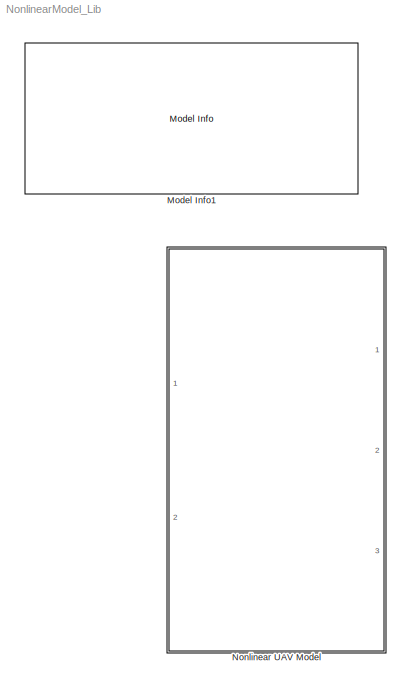
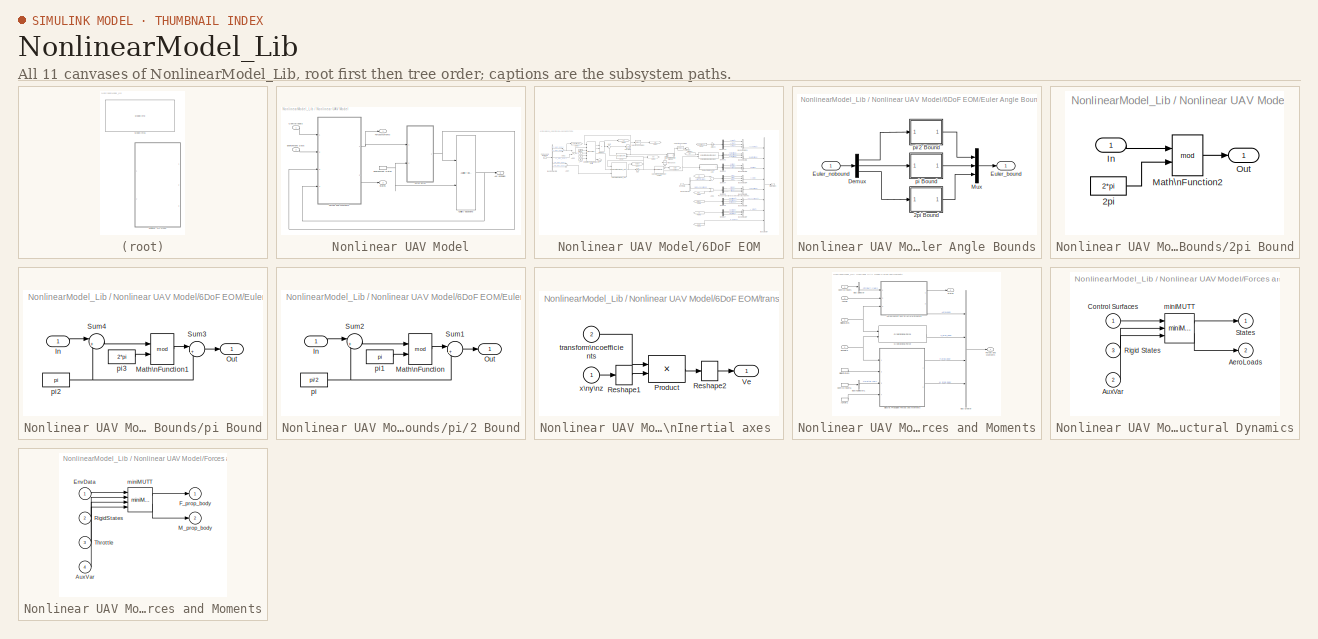
[diagram: thumbnail index - all 11 canvases of the model, root first then tree order]
MODEL NonlinearModel_Lib
KIND library
BLOCK [Reference] Model Info1  REF=simulink/Model-Wide\nUtilities/Model Info
  BlockCM = None
  DisplayStringWithTags = MODEL INFORMATION\nUAV Nonlinear Model Library\n\nUniversity of Minnesota\nAerospace Engineering and Mechanics\nCopyright 2011 Regents of the University of Minnesota. All rights reserved.\n\n== SVN Info ==\nLast modified by %<LastModifiedBy> on %<LastModificationDate>
  Frame = on
  HorizontalTextAlignment = Left
  InitialBlockCM = None
  LeftAlignmentValue = 0.02
  MaskDisplayString = MODEL INFORMATION\\nUAV Nonlinear Model Library\\n\\nUniversity of Minnesota\\nAerospace Engineering and Mechanics\\nCopyright 2011 Regents of the University of Minnesota. All rights reserved.\\n\\n== SVN Info ==\\nLast modified by brtaylor on 20-May-2014 11:43:06
  Ports = []
  SID = 2165
  SourceBlock = simulink/Model-Wide\nUtilities/Model Info
  SourceBlockDiagram = NonlinearModel_Lib
  SourceType = CMBlock
  TagMaxNumber = 20
BLOCK [SubSystem] Nonlinear UAV Model
  FunctionWithSeparateData = off
  MaskHideContents = off
  MinAlgLoopOccurrences = off
  Opaque = off
  Ports = [2, 3]
  PropExecContextOutsideSubsystem = off
  RTWSystemCode = Auto
  RequestExecContextInheritance = off
  SID = 1513
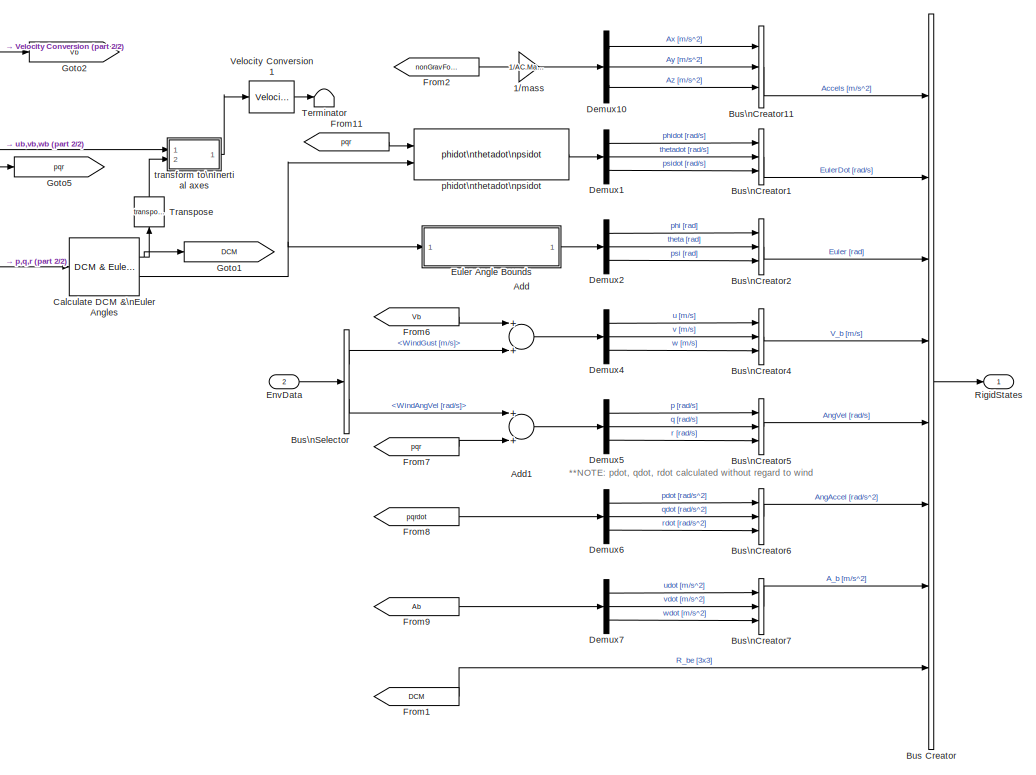
[diagram: Nonlinear UAV Model/6DoF EOM - part 1/2, right side, full height]
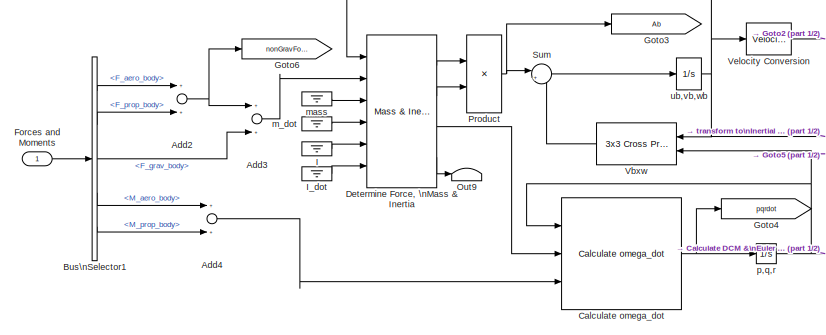
[diagram: Nonlinear UAV Model/6DoF EOM - part 2/2, top left region]
BLOCK [SubSystem] Nonlinear UAV Model/6DoF EOM
  FunctionWithSeparateData = off
  MaskHideContents = off
  MinAlgLoopOccurrences = off
  Opaque = off
  Ports = [2, 1]
  PropExecContextOutsideSubsystem = off
  RTWSystemCode = Auto
  RequestExecContextInheritance = off
  SID = 2142
BLOCK [Gain] Nonlinear UAV Model/6DoF EOM/1//mass
  Gain = 1/AC.Mass
  OutDataTypeStr = Inherit: Inherit via internal rule
  ParamDataTypeStr = Inherit: Inherit via internal rule
  SID = 2142:2277
  SaturateOnIntegerOverflow = off
BLOCK [Sum] Nonlinear UAV Model/6DoF EOM/Add
  InputSameDT = off
  OutDataTypeStr = Inherit: Inherit via internal rule
  Ports = [2, 1]
  SID = 2142:2253
  SaturateOnIntegerOverflow = off
BLOCK [Sum] Nonlinear UAV Model/6DoF EOM/Add1
  InputSameDT = off
  OutDataTypeStr = Inherit: Inherit via internal rule
  Ports = [2, 1]
  SID = 2142:2256
  SaturateOnIntegerOverflow = off
BLOCK [Sum] Nonlinear UAV Model/6DoF EOM/Add2
  InputSameDT = off
  OutDataTypeStr = Inherit: Inherit via internal rule
  Ports = [2, 1]
  SID = 2142:2405
  SaturateOnIntegerOverflow = off
BLOCK [Sum] Nonlinear UAV Model/6DoF EOM/Add3
  InputSameDT = off
  OutDataTypeStr = Inherit: Inherit via internal rule
  Ports = [2, 1]
  SID = 2142:2406
  SaturateOnIntegerOverflow = off
BLOCK [Sum] Nonlinear UAV Model/6DoF EOM/Add4
  InputSameDT = off
  OutDataTypeStr = Inherit: Inherit via internal rule
  Ports = [2, 1]
  SID = 2142:2408
  SaturateOnIntegerOverflow = off
BLOCK [BusCreator] Nonlinear UAV Model/6DoF EOM/Bus Creator
  DisplayOption = bar
  Inputs = 8
  Ports = [8, 1]
  SID = 2142:2242
BLOCK [BusCreator] Nonlinear UAV Model/6DoF EOM/Bus\nCreator1
  DisplayOption = bar
  Inputs = 3
  Ports = [3, 1]
  SID = 2142:2271
BLOCK [BusCreator] Nonlinear UAV Model/6DoF EOM/Bus\nCreator11
  DisplayOption = bar
  Inputs = 3
  Ports = [3, 1]
  SID = 2142:2278
BLOCK [BusCreator] Nonlinear UAV Model/6DoF EOM/Bus\nCreator2
  DisplayOption = bar
  Inputs = 3
  Ports = [3, 1]
  SID = 2142:2275
BLOCK [BusCreator] Nonlinear UAV Model/6DoF EOM/Bus\nCreator4
  DisplayOption = bar
  Inputs = 3
  Ports = [3, 1]
  SID = 2142:2254
BLOCK [BusCreator] Nonlinear UAV Model/6DoF EOM/Bus\nCreator5
  DisplayOption = bar
  Inputs = 3
  Ports = [3, 1]
  SID = 2142:2258
BLOCK [BusCreator] Nonlinear UAV Model/6DoF EOM/Bus\nCreator6
  DisplayOption = bar
  Inputs = 3
  Ports = [3, 1]
  SID = 2142:2260
BLOCK [BusCreator] Nonlinear UAV Model/6DoF EOM/Bus\nCreator7
  DisplayOption = bar
  Inputs = 3
  Ports = [3, 1]
  SID = 2142:2263
BLOCK [BusSelector] Nonlinear UAV Model/6DoF EOM/Bus\nSelector
  OutputSignals = WindGust [m/s],WindAngVel [rad/s]
  Ports = [1, 2]
  SID = 2142:2251
BLOCK [BusSelector] Nonlinear UAV Model/6DoF EOM/Bus\nSelector1
  OutputSignals = AeroLoads.F_aero_body,F_prop_body,F_grav_body,AeroLoads.M_aero_body,M_prop_body
  Ports = [1, 5]
  SID = 2142:2404
BLOCK [Reference] Nonlinear UAV Model/6DoF EOM/Calculate DCM &\nEuler Angles  REF=aerolib6dofsys/DCM & Euler Angles (Euler)
  FunctionWithSeparateData = off
  GeneratePreprocessorConditionals = off
  Ports = [1, 2]
  SID = 2142:2142
  ShowPortLabels = FromPortIcon
  SourceBlock = aerolib6dofsys/DCM & Euler Angles (Euler)
  SourceType = DCM & Euler Angles (Euler)
  SystemSampleTime = -1
BLOCK [Reference] Nonlinear UAV Model/6DoF EOM/Calculate omega_dot  REF=aerolib6dofsys/Calculate omega_dot
  Ports = [3, 1]
  SID = 2142:2143
  SourceBlock = aerolib6dofsys/Calculate omega_dot
  SourceType = SubSystem
BLOCK [Demux] Nonlinear UAV Model/6DoF EOM/Demux1
  DisplayOption = bar
  Outputs = 3
  Ports = [1, 3]
  SID = 2142:2272
BLOCK [Demux] Nonlinear UAV Model/6DoF EOM/Demux10
  DisplayOption = bar
  Outputs = 3
  Ports = [1, 3]
  SID = 2142:2279
BLOCK [Demux] Nonlinear UAV Model/6DoF EOM/Demux2
  DisplayOption = bar
  Outputs = 3
  Ports = [1, 3]
  SID = 2142:2276
BLOCK [Demux] Nonlinear UAV Model/6DoF EOM/Demux4
  DisplayOption = bar
  Outputs = 3
  Ports = [1, 3]
  SID = 2142:2255
BLOCK [Demux] Nonlinear UAV Model/6DoF EOM/Demux5
  DisplayOption = bar
  Outputs = 3
  Ports = [1, 3]
  SID = 2142:2259
BLOCK [Demux] Nonlinear UAV Model/6DoF EOM/Demux6
  DisplayOption = bar
  Outputs = 3
  Ports = [1, 3]
  SID = 2142:2261
BLOCK [Demux] Nonlinear UAV Model/6DoF EOM/Demux7
  DisplayOption = bar
  Outputs = 3
  Ports = [1, 3]
  SID = 2142:2264
BLOCK [Reference] Nonlinear UAV Model/6DoF EOM/Determine Force, \nMass & Inertia  REF=aerolib6dofsys/Mass & Inertia (fixed)
  FunctionWithSeparateData = off
  GeneratePreprocessorConditionals = off
  Ports = [6, 4]
  SID = 2142:2144
  ShowPortLabels = FromPortIcon
  SourceBlock = aerolib6dofsys/Mass & Inertia (fixed)
  SourceType = Mass & Inertia (fixed)
  SystemSampleTime = -1
BLOCK [Inport] Nonlinear UAV Model/6DoF EOM/EnvData
  IconDisplay = Port number
  Port = 2
  SID = 2142:2250
BLOCK [SubSystem] Nonlinear UAV Model/6DoF EOM/Euler Angle Bounds
  FunctionWithSeparateData = off
  MaskHideContents = off
  MinAlgLoopOccurrences = off
  Opaque = off
  Ports = [1, 1]
  PropExecContextOutsideSubsystem = off
  RTWSystemCode = Auto
  RequestExecContextInheritance = off
  SID = 2142:2350
BLOCK [SubSystem] Nonlinear UAV Model/6DoF EOM/Euler Angle Bounds/2pi Bound
  FunctionWithSeparateData = off
  MaskHideContents = off
  MinAlgLoopOccurrences = off
  Opaque = off
  Ports = [1, 1]
  PropExecContextOutsideSubsystem = off
  RTWSystemCode = Auto
  RequestExecContextInheritance = off
  SID = 2142:2392
BLOCK [Constant] Nonlinear UAV Model/6DoF EOM/Euler Angle Bounds/2pi Bound/2pi
  SID = 2142:2401
  Value = 2*pi
BLOCK [Inport] Nonlinear UAV Model/6DoF EOM/Euler Angle Bounds/2pi Bound/In
  IconDisplay = Port number
  SID = 2142:2400
BLOCK [Math] Nonlinear UAV Model/6DoF EOM/Euler Angle Bounds/2pi Bound/Math\nFunction2
  Operator = mod
  Ports = [2, 1]
  SID = 2142:2402
BLOCK [Outport] Nonlinear UAV Model/6DoF EOM/Euler Angle Bounds/2pi Bound/Out
  IconDisplay = Port number
  SID = 2142:2403
BLOCK [Demux] Nonlinear UAV Model/6DoF EOM/Euler Angle Bounds/Demux
  DisplayOption = bar
  Outputs = 3
  Ports = [1, 3]
  SID = 2142:2355
BLOCK [Outport] Nonlinear UAV Model/6DoF EOM/Euler Angle Bounds/Euler_bound
  IconDisplay = Port number
  SID = 2142:2359
BLOCK [Inport] Nonlinear UAV Model/6DoF EOM/Euler Angle Bounds/Euler_nobound
  IconDisplay = Port number
  SID = 2142:2353
BLOCK [Mux] Nonlinear UAV Model/6DoF EOM/Euler Angle Bounds/Mux
  DisplayOption = bar
  Inputs = 3
  Ports = [3, 1]
  SID = 2142:2356
BLOCK [SubSystem] Nonlinear UAV Model/6DoF EOM/Euler Angle Bounds/pi Bound
  FunctionWithSeparateData = off
  MaskHideContents = off
  MinAlgLoopOccurrences = off
  Opaque = off
  Ports = [1, 1]
  PropExecContextOutsideSubsystem = off
  RTWSystemCode = Auto
  RequestExecContextInheritance = off
  SID = 2142:2377
BLOCK [Inport] Nonlinear UAV Model/6DoF EOM/Euler Angle Bounds/pi Bound/In
  IconDisplay = Port number
  SID = 2142:2385
BLOCK [Math] Nonlinear UAV Model/6DoF EOM/Euler Angle Bounds/pi Bound/Math\nFunction1
  Operator = mod
  Ports = [2, 1]
  SID = 2142:2386
BLOCK [Outport] Nonlinear UAV Model/6DoF EOM/Euler Angle Bounds/pi Bound/Out
  IconDisplay = Port number
  SID = 2142:2391
BLOCK [Sum] Nonlinear UAV Model/6DoF EOM/Euler Angle Bounds/pi Bound/Sum3
  IconShape = round
  Inputs = |+-
  Ports = [2, 1]
  SID = 2142:2387
BLOCK [Sum] Nonlinear UAV Model/6DoF EOM/Euler Angle Bounds/pi Bound/Sum4
  IconShape = round
  Inputs = |++
  Ports = [2, 1]
  SID = 2142:2388
BLOCK [Constant] Nonlinear UAV Model/6DoF EOM/Euler Angle Bounds/pi Bound/pi2
  SID = 2142:2389
  Value = pi
BLOCK [Constant] Nonlinear UAV Model/6DoF EOM/Euler Angle Bounds/pi Bound/pi3
  SID = 2142:2390
  Value = 2*pi
BLOCK [SubSystem] Nonlinear UAV Model/6DoF EOM/Euler Angle Bounds/pi//2 Bound
  FunctionWithSeparateData = off
  MaskHideContents = off
  MinAlgLoopOccurrences = off
  Opaque = off
  Ports = [1, 1]
  PropExecContextOutsideSubsystem = off
  RTWSystemCode = Auto
  RequestExecContextInheritance = off
  SID = 2142:2363
BLOCK [Inport] Nonlinear UAV Model/6DoF EOM/Euler Angle Bounds/pi//2 Bound/In
  IconDisplay = Port number
  SID = 2142:2366
BLOCK [Math] Nonlinear UAV Model/6DoF EOM/Euler Angle Bounds/pi//2 Bound/Math\nFunction
  Operator = mod
  Ports = [2, 1]
  SID = 2142:2367
BLOCK [Outport] Nonlinear UAV Model/6DoF EOM/Euler Angle Bounds/pi//2 Bound/Out
  IconDisplay = Port number
  SID = 2142:2372
BLOCK [Sum] Nonlinear UAV Model/6DoF EOM/Euler Angle Bounds/pi//2 Bound/Sum1
  IconShape = round
  Inputs = |+-
  Ports = [2, 1]
  SID = 2142:2368
BLOCK [Sum] Nonlinear UAV Model/6DoF EOM/Euler Angle Bounds/pi//2 Bound/Sum2
  IconShape = round
  Inputs = |++
  Ports = [2, 1]
  SID = 2142:2369
BLOCK [Constant] Nonlinear UAV Model/6DoF EOM/Euler Angle Bounds/pi//2 Bound/pi
  SID = 2142:2370
  Value = pi/2
BLOCK [Constant] Nonlinear UAV Model/6DoF EOM/Euler Angle Bounds/pi//2 Bound/pi1
  SID = 2142:2371
  Value = pi
BLOCK [Inport] Nonlinear UAV Model/6DoF EOM/Forces and Moments
  IconDisplay = Port number
  SID = 2142:2140
BLOCK [From] Nonlinear UAV Model/6DoF EOM/From1
  GotoTag = DCM
  SID = 2142:2281
BLOCK [From] Nonlinear UAV Model/6DoF EOM/From11
  GotoTag = pqr
  SID = 2142:2273
BLOCK [From] Nonlinear UAV Model/6DoF EOM/From2
  GotoTag = nonGravForces
  SID = 2142:2409
BLOCK [From] Nonlinear UAV Model/6DoF EOM/From6
  GotoTag = Vb
  SID = 2142:2252
BLOCK [From] Nonlinear UAV Model/6DoF EOM/From7
  GotoTag = pqr
  SID = 2142:2257
BLOCK [From] Nonlinear UAV Model/6DoF EOM/From8
  GotoTag = pqrdot
  SID = 2142:2262
BLOCK [From] Nonlinear UAV Model/6DoF EOM/From9
  GotoTag = Ab
  SID = 2142:2265
BLOCK [Goto] Nonlinear UAV Model/6DoF EOM/Goto1
  GotoTag = DCM
  SID = 2142:2237
BLOCK [Goto] Nonlinear UAV Model/6DoF EOM/Goto2
  GotoTag = Vb
  SID = 2142:2238
BLOCK [Goto] Nonlinear UAV Model/6DoF EOM/Goto3
  GotoTag = Ab
  SID = 2142:2239
BLOCK [Goto] Nonlinear UAV Model/6DoF EOM/Goto4
  GotoTag = pqrdot
  SID = 2142:2240
BLOCK [Goto] Nonlinear UAV Model/6DoF EOM/Goto5
  GotoTag = pqr
  SID = 2142:2241
BLOCK [Goto] Nonlinear UAV Model/6DoF EOM/Goto6
  GotoTag = nonGravForces
  SID = 2142:2407
BLOCK [Ground] Nonlinear UAV Model/6DoF EOM/I
  SID = 2142:2145
BLOCK [Ground] Nonlinear UAV Model/6DoF EOM/I_dot
  SID = 2142:2146
BLOCK [Terminator] Nonlinear UAV Model/6DoF EOM/Out9
  SID = 2142:2147
BLOCK [Product] Nonlinear UAV Model/6DoF EOM/Product
  InputSameDT = off
  Inputs = */
  Ports = [2, 1]
  RndMeth = Floor
  SID = 2142:2148
BLOCK [Outport] Nonlinear UAV Model/6DoF EOM/RigidStates
  IconDisplay = Port number
  SID = 2142:2166
BLOCK [Sum] Nonlinear UAV Model/6DoF EOM/Sum
  IconShape = round
  InputSameDT = off
  Inputs = |++
  OutDataTypeStr = Inherit: Inherit via internal rule
  Ports = [2, 1]
  SID = 2142:2149
BLOCK [Terminator] Nonlinear UAV Model/6DoF EOM/Terminator
  SID = 2142:2150
BLOCK [Math] Nonlinear UAV Model/6DoF EOM/Transpose
  Operator = transpose
  Ports = [1, 1]
  SID = 2142:2151
BLOCK [Reference] Nonlinear UAV Model/6DoF EOM/Vbxw  REF=aerolibutil/3x3 Cross Product
  Ports = [2, 1]
  SID = 2142:2152
  SourceBlock = aerolibutil/3x3 Cross Product
  SourceType = CrossProduct
BLOCK [Reference] Nonlinear UAV Model/6DoF EOM/Velocity Conversion  REF=aerolibconvert2/Velocity Conversion
  IU = m/s
  OU = m/s
  Ports = [1, 1]
  SID = 2142:2153
  SourceBlock = aerolibconvert2/Velocity Conversion
  SourceType = Velocity Conversion
BLOCK [Reference] Nonlinear UAV Model/6DoF EOM/Velocity Conversion1  REF=aerolibconvert2/Velocity Conversion
  IU = m/s
  OU = m/s
  Ports = [1, 1]
  SID = 2142:2154
  SourceBlock = aerolibconvert2/Velocity Conversion
  SourceType = Velocity Conversion
BLOCK [Ground] Nonlinear UAV Model/6DoF EOM/m_dot
  SID = 2142:2155
BLOCK [Ground] Nonlinear UAV Model/6DoF EOM/mass
  SID = 2142:2156
BLOCK [Integrator] Nonlinear UAV Model/6DoF EOM/p,q,r 
  InitialCondition = pm_0
  Ports = [1, 1]
  SID = 2142:2157
BLOCK [Reference] Nonlinear UAV Model/6DoF EOM/phidot\nthetadot\npsidot  REF=aerolib6dofsys/DCM & Euler Angles (Euler)/phidot\nthetadot\npsidot
  Ports = [2, 1]
  SID = 2142:2274
  SourceBlock = aerolib6dofsys/DCM & Euler Angles (Euler)/phidot\nthetadot\npsidot
  SourceType = SubSystem
BLOCK [SubSystem] Nonlinear UAV Model/6DoF EOM/transform to\nInertial axes 
  FunctionWithSeparateData = off
  MaskHideContents = off
  MinAlgLoopOccurrences = off
  Opaque = off
  Ports = [2, 1]
  PropExecContextOutsideSubsystem = off
  RTWSystemCode = Auto
  RequestExecContextInheritance = off
  SID = 2142:2158
  ShowPortLabels = none
BLOCK [Product] Nonlinear UAV Model/6DoF EOM/transform to\nInertial axes /Product
  Multiplication = Matrix(*)
  Ports = [2, 1]
  RndMeth = Floor
  SID = 2142:2161
BLOCK [Reshape] Nonlinear UAV Model/6DoF EOM/transform to\nInertial axes /Reshape1
  OutputDimensionality = Column vector (2-D)
  Ports = [1, 1]
  SID = 2142:2162
BLOCK [Reshape] Nonlinear UAV Model/6DoF EOM/transform to\nInertial axes /Reshape2
  Ports = [1, 1]
  SID = 2142:2163
BLOCK [Outport] Nonlinear UAV Model/6DoF EOM/transform to\nInertial axes /Ve
  IconDisplay = Port number
  SID = 2142:2164
BLOCK [Inport] Nonlinear UAV Model/6DoF EOM/transform to\nInertial axes /transform\ncoefficients
  IconDisplay = Port number
  Port = 2
  SID = 2142:2160
BLOCK [Inport] Nonlinear UAV Model/6DoF EOM/transform to\nInertial axes /x\ny\nz
  IconDisplay = Port number
  SID = 2142:2159
BLOCK [Integrator] Nonlinear UAV Model/6DoF EOM/ub,vb,wb
  InitialCondition = convvel(Vm_0,'m/s','m/s')
  Ports = [1, 1]
  SID = 2142:2165
BLOCK [Outport] Nonlinear UAV Model/Aux Variables
  IconDisplay = Port number
  Port = 3
  SID = 2163
BLOCK [Reference] Nonlinear UAV Model/Auxiliary Equations  REF=AuxEq_Lib/Auxiliary Equations
  Ports = [2, 1]
  SID = 2143
  SourceBlock = AuxEq_Lib/Auxiliary Equations
  SourceType = SubSystem
BLOCK [Inport] Nonlinear UAV Model/Control Inputs
  IconDisplay = Port number
  SID = 2141
BLOCK [Inport] Nonlinear UAV Model/Environment Data
  IconDisplay = Port number
  Port = 2
  SID = 2167
BLOCK [InportShadow] Nonlinear UAV Model/Environment Data1
  IconDisplay = Port number
  LatchByDelayingOutsideSignal = off
  LatchInputForFeedbackSignals = off
  Port = 2
  SID = 2169
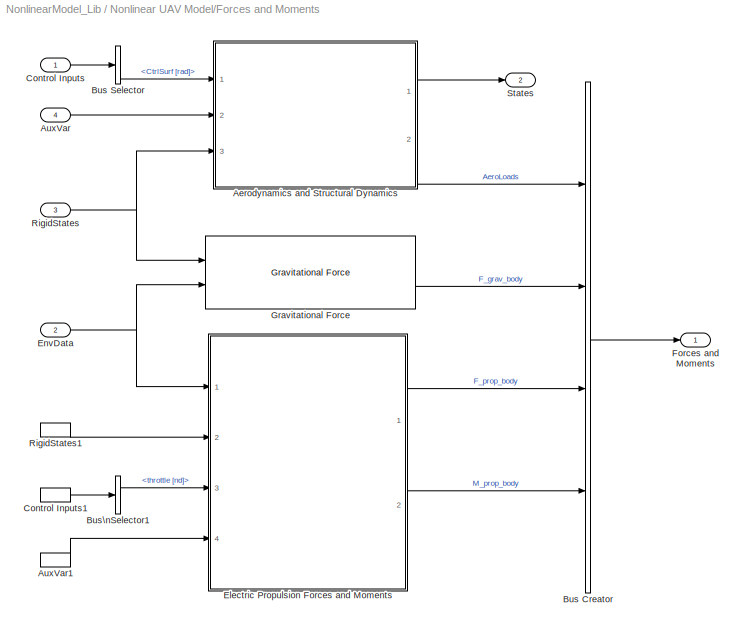
BLOCK [SubSystem] Nonlinear UAV Model/Forces and Moments
  FunctionWithSeparateData = off
  MaskHideContents = off
  MinAlgLoopOccurrences = off
  Opaque = off
  Ports = [4, 2]
  PropExecContextOutsideSubsystem = off
  RTWSystemCode = Auto
  RequestExecContextInheritance = off
  SID = 2145
BLOCK [SubSystem] Nonlinear UAV Model/Forces and Moments/Aerodynamics and Structural Dynamics
  AttributesFormatString = %<BlockChoice>
  BlockChoice = miniMUTT
  FunctionWithSeparateData = off
  MaskHideContents = off
  MemberBlocks = UltraStick,miniMUTT
  MinAlgLoopOccurrences = off
  Opaque = off
  Ports = [3, 2]
  PropExecContextOutsideSubsystem = off
  RTWSystemCode = Auto
  RequestExecContextInheritance = off
  SID = 2174
  TemplateBlock = Aero_Lib/Aerodynamics and Structural Dynamics
BLOCK [Outport] Nonlinear UAV Model/Forces and Moments/Aerodynamics and Structural Dynamics/AeroLoads
  IconDisplay = Port number
  Port = 2
  SID = 2174::1004
BLOCK [Inport] Nonlinear UAV Model/Forces and Moments/Aerodynamics and Structural Dynamics/AuxVar
  IconDisplay = Port number
  Port = 2
  SID = 2174::1001
BLOCK [Inport] Nonlinear UAV Model/Forces and Moments/Aerodynamics and Structural Dynamics/Control Surfaces
  IconDisplay = Port number
  SID = 2174::999
BLOCK [Inport] Nonlinear UAV Model/Forces and Moments/Aerodynamics and Structural Dynamics/Rigid States
  IconDisplay = Port number
  Port = 3
  SID = 2174::1000
BLOCK [Outport] Nonlinear UAV Model/Forces and Moments/Aerodynamics and Structural Dynamics/States
  IconDisplay = Port number
  SID = 2174::1003
BLOCK [Reference] Nonlinear UAV Model/Forces and Moments/Aerodynamics and Structural Dynamics/miniMUTT  REF=miniMUTT_Aero_Lib/miniMUTT
  Ports = [3, 2]
  SID = 2174::977
  SourceBlock = miniMUTT_Aero_Lib/miniMUTT
  SourceType = SubSystem
BLOCK [Inport] Nonlinear UAV Model/Forces and Moments/AuxVar
  IconDisplay = Port number
  Port = 4
  SID = 2170
BLOCK [InportShadow] Nonlinear UAV Model/Forces and Moments/AuxVar1
  IconDisplay = Port number
  LatchByDelayingOutsideSignal = off
  LatchInputForFeedbackSignals = off
  Port = 4
  SID = 2176
BLOCK [BusCreator] Nonlinear UAV Model/Forces and Moments/Bus Creator
  DisplayOption = bar
  Ports = [4, 1]
  SID = 2173
BLOCK [BusSelector] Nonlinear UAV Model/Forces and Moments/Bus Selector
  OutputSignals = CtrlSurf [rad]
  Ports = [1, 1]
  SID = 2175
BLOCK [BusSelector] Nonlinear UAV Model/Forces and Moments/Bus\nSelector1
  OutputSignals = throttle [nd]
  Ports = [1, 1]
  SID = 2151
BLOCK [Inport] Nonlinear UAV Model/Forces and Moments/Control Inputs
  IconDisplay = Port number
  SID = 2146
BLOCK [InportShadow] Nonlinear UAV Model/Forces and Moments/Control Inputs1
  IconDisplay = Port number
  LatchByDelayingOutsideSignal = off
  LatchInputForFeedbackSignals = off
  SID = 2152
BLOCK [SubSystem] Nonlinear UAV Model/Forces and Moments/Electric Propulsion Forces and Moments
  BlockChoice = miniMUTT
  FunctionWithSeparateData = off
  MaskHideContents = off
  MemberBlocks = UltraStick,miniMUTT
  MinAlgLoopOccurrences = off
  Opaque = off
  Ports = [4, 2]
  PropExecContextOutsideSubsystem = off
  RTWSystemCode = Auto
  RequestExecContextInheritance = off
  SID = 2153
  TemplateBlock = Propulsion_Lib/Electric Propulsion Forces and Moments
BLOCK [Inport] Nonlinear UAV Model/Forces and Moments/Electric Propulsion Forces and Moments/AuxVar
  IconDisplay = Port number
  Port = 4
  SID = 2153::477
BLOCK [Inport] Nonlinear UAV Model/Forces and Moments/Electric Propulsion Forces and Moments/EnvData
  IconDisplay = Port number
  SID = 2153::474
BLOCK [Outport] Nonlinear UAV Model/Forces and Moments/Electric Propulsion Forces and Moments/F_prop_body
  IconDisplay = Port number
  SID = 2153::478
BLOCK [Outport] Nonlinear UAV Model/Forces and Moments/Electric Propulsion Forces and Moments/M_prop_body
  IconDisplay = Port number
  Port = 2
  SID = 2153::479
BLOCK [Inport] Nonlinear UAV Model/Forces and Moments/Electric Propulsion Forces and Moments/RigidStates
  IconDisplay = Port number
  Port = 2
  SID = 2153::475
BLOCK [Inport] Nonlinear UAV Model/Forces and Moments/Electric Propulsion Forces and Moments/Throttle
  IconDisplay = Port number
  Port = 3
  SID = 2153::476
BLOCK [Reference] Nonlinear UAV Model/Forces and Moments/Electric Propulsion Forces and Moments/miniMUTT  REF=Propulsion_Lib/miniMUTT
  Ports = [4, 2]
  SID = 2153::654
  SourceBlock = Propulsion_Lib/miniMUTT
  SourceType = SubSystem
BLOCK [Inport] Nonlinear UAV Model/Forces and Moments/EnvData
  IconDisplay = Port number
  Port = 2
  SID = 2148
BLOCK [Outport] Nonlinear UAV Model/Forces and Moments/Forces and Moments
  IconDisplay = Port number
  SID = 2158
BLOCK [Reference] Nonlinear UAV Model/Forces and Moments/Gravitational Force   REF=Gravity_Lib/Gravitational Force 
  Ports = [2, 1]
  SID = 2154
  SourceBlock = Gravity_Lib/Gravitational Force
  SourceType = SubSystem
BLOCK [Inport] Nonlinear UAV Model/Forces and Moments/RigidStates
  IconDisplay = Port number
  Port = 3
  SID = 2147
BLOCK [InportShadow] Nonlinear UAV Model/Forces and Moments/RigidStates1
  IconDisplay = Port number
  LatchByDelayingOutsideSignal = off
  LatchInputForFeedbackSignals = off
  Port = 3
  SID = 2172
BLOCK [Outport] Nonlinear UAV Model/Forces and Moments/States
  IconDisplay = Port number
  Port = 2
  SID = 2159
BLOCK [Outport] Nonlinear UAV Model/ForcesMoments
  IconDisplay = Port number
  SID = 2166
BLOCK [Outport] Nonlinear UAV Model/States
  IconDisplay = Port number
  Port = 2
  SID = 2162
ANNOTATION Nonlinear UAV Model/6DoF EOM: **NOTE: pdot, qdot, rdot calculated without regard to wind
LINE Nonlinear UAV Model/6DoF EOM/1//mass:1 -> Nonlinear UAV Model/6DoF EOM/Demux10:1
LINE Nonlinear UAV Model/6DoF EOM/Add1:1 -> Nonlinear UAV Model/6DoF EOM/Demux5:1
NET Nonlinear UAV Model/6DoF EOM/Add2:1 -> Nonlinear UAV Model/6DoF EOM/Add3:1, Nonlinear UAV Model/6DoF EOM/Goto6:1
LINE Nonlinear UAV Model/6DoF EOM/Add3:1 -> Nonlinear UAV Model/6DoF EOM/Determine Force, \nMass & Inertia:2
LINE Nonlinear UAV Model/6DoF EOM/Add4:1 -> Nonlinear UAV Model/6DoF EOM/Calculate omega_dot:3
LINE Nonlinear UAV Model/6DoF EOM/Add:1 -> Nonlinear UAV Model/6DoF EOM/Demux4:1
LINE Nonlinear UAV Model/6DoF EOM/Bus Creator:1 -> Nonlinear UAV Model/6DoF EOM/RigidStates:1
LINE Nonlinear UAV Model/6DoF EOM/Bus\nCreator11:1 -> Nonlinear UAV Model/6DoF EOM/Bus Creator:1
LINE Nonlinear UAV Model/6DoF EOM/Bus\nCreator1:1 -> Nonlinear UAV Model/6DoF EOM/Bus Creator:2
LINE Nonlinear UAV Model/6DoF EOM/Bus\nCreator2:1 -> Nonlinear UAV Model/6DoF EOM/Bus Creator:3
LINE Nonlinear UAV Model/6DoF EOM/Bus\nCreator4:1 -> Nonlinear UAV Model/6DoF EOM/Bus Creator:4
LINE Nonlinear UAV Model/6DoF EOM/Bus\nCreator5:1 -> Nonlinear UAV Model/6DoF EOM/Bus Creator:5
LINE Nonlinear UAV Model/6DoF EOM/Bus\nCreator6:1 -> Nonlinear UAV Model/6DoF EOM/Bus Creator:6
LINE Nonlinear UAV Model/6DoF EOM/Bus\nCreator7:1 -> Nonlinear UAV Model/6DoF EOM/Bus Creator:7
LINE Nonlinear UAV Model/6DoF EOM/Bus\nSelector1:1 -> Nonlinear UAV Model/6DoF EOM/Add2:1
LINE Nonlinear UAV Model/6DoF EOM/Bus\nSelector1:2 -> Nonlinear UAV Model/6DoF EOM/Add2:2
LINE Nonlinear UAV Model/6DoF EOM/Bus\nSelector1:3 -> Nonlinear UAV Model/6DoF EOM/Add3:2
LINE Nonlinear UAV Model/6DoF EOM/Bus\nSelector1:4 -> Nonlinear UAV Model/6DoF EOM/Add4:1
LINE Nonlinear UAV Model/6DoF EOM/Bus\nSelector1:5 -> Nonlinear UAV Model/6DoF EOM/Add4:2
LINE Nonlinear UAV Model/6DoF EOM/Bus\nSelector:1 -> Nonlinear UAV Model/6DoF EOM/Add:2
LINE Nonlinear UAV Model/6DoF EOM/Bus\nSelector:2 -> Nonlinear UAV Model/6DoF EOM/Add1:1
NET Nonlinear UAV Model/6DoF EOM/Calculate DCM &\nEuler Angles:1 -> Nonlinear UAV Model/6DoF EOM/Goto1:1, Nonlinear UAV Model/6DoF EOM/Transpose:1
NET Nonlinear UAV Model/6DoF EOM/Calculate DCM &\nEuler Angles:2 -> Nonlinear UAV Model/6DoF EOM/Euler Angle Bounds:1, Nonlinear UAV Model/6DoF EOM/phidot\nthetadot\npsidot:2
NET Nonlinear UAV Model/6DoF EOM/Calculate omega_dot:1 -> Nonlinear UAV Model/6DoF EOM/Goto4:1, Nonlinear UAV Model/6DoF EOM/p,q,r :1
LINE Nonlinear UAV Model/6DoF EOM/Demux10:1 -> Nonlinear UAV Model/6DoF EOM/Bus\nCreator11:1
LINE Nonlinear UAV Model/6DoF EOM/Demux10:2 -> Nonlinear UAV Model/6DoF EOM/Bus\nCreator11:2
LINE Nonlinear UAV Model/6DoF EOM/Demux10:3 -> Nonlinear UAV Model/6DoF EOM/Bus\nCreator11:3
LINE Nonlinear UAV Model/6DoF EOM/Demux1:1 -> Nonlinear UAV Model/6DoF EOM/Bus\nCreator1:1
LINE Nonlinear UAV Model/6DoF EOM/Demux1:2 -> Nonlinear UAV Model/6DoF EOM/Bus\nCreator1:2
LINE Nonlinear UAV Model/6DoF EOM/Demux1:3 -> Nonlinear UAV Model/6DoF EOM/Bus\nCreator1:3
LINE Nonlinear UAV Model/6DoF EOM/Demux2:1 -> Nonlinear UAV Model/6DoF EOM/Bus\nCreator2:1
LINE Nonlinear UAV Model/6DoF EOM/Demux2:2 -> Nonlinear UAV Model/6DoF EOM/Bus\nCreator2:2
LINE Nonlinear UAV Model/6DoF EOM/Demux2:3 -> Nonlinear UAV Model/6DoF EOM/Bus\nCreator2:3
LINE Nonlinear UAV Model/6DoF EOM/Demux4:1 -> Nonlinear UAV Model/6DoF EOM/Bus\nCreator4:1
LINE Nonlinear UAV Model/6DoF EOM/Demux4:2 -> Nonlinear UAV Model/6DoF EOM/Bus\nCreator4:2
LINE Nonlinear UAV Model/6DoF EOM/Demux4:3 -> Nonlinear UAV Model/6DoF EOM/Bus\nCreator4:3
LINE Nonlinear UAV Model/6DoF EOM/Demux5:1 -> Nonlinear UAV Model/6DoF EOM/Bus\nCreator5:1
LINE Nonlinear UAV Model/6DoF EOM/Demux5:2 -> Nonlinear UAV Model/6DoF EOM/Bus\nCreator5:2
LINE Nonlinear UAV Model/6DoF EOM/Demux5:3 -> Nonlinear UAV Model/6DoF EOM/Bus\nCreator5:3
LINE Nonlinear UAV Model/6DoF EOM/Demux6:1 -> Nonlinear UAV Model/6DoF EOM/Bus\nCreator6:1
LINE Nonlinear UAV Model/6DoF EOM/Demux6:2 -> Nonlinear UAV Model/6DoF EOM/Bus\nCreator6:2
LINE Nonlinear UAV Model/6DoF EOM/Demux6:3 -> Nonlinear UAV Model/6DoF EOM/Bus\nCreator6:3
LINE Nonlinear UAV Model/6DoF EOM/Demux7:1 -> Nonlinear UAV Model/6DoF EOM/Bus\nCreator7:1
LINE Nonlinear UAV Model/6DoF EOM/Demux7:2 -> Nonlinear UAV Model/6DoF EOM/Bus\nCreator7:2
LINE Nonlinear UAV Model/6DoF EOM/Demux7:3 -> Nonlinear UAV Model/6DoF EOM/Bus\nCreator7:3
LINE Nonlinear UAV Model/6DoF EOM/Determine Force, \nMass & Inertia:1 -> Nonlinear UAV Model/6DoF EOM/Product:1
LINE Nonlinear UAV Model/6DoF EOM/Determine Force, \nMass & Inertia:2 -> Nonlinear UAV Model/6DoF EOM/Product:2
LINE Nonlinear UAV Model/6DoF EOM/Determine Force, \nMass & Inertia:3 -> Nonlinear UAV Model/6DoF EOM/Calculate omega_dot:2
LINE Nonlinear UAV Model/6DoF EOM/Determine Force, \nMass & Inertia:4 -> Nonlinear UAV Model/6DoF EOM/Out9:1
LINE Nonlinear UAV Model/6DoF EOM/EnvData:1 -> Nonlinear UAV Model/6DoF EOM/Bus\nSelector:1
LINE Nonlinear UAV Model/6DoF EOM/Euler Angle Bounds/2pi Bound/2pi:1 -> Nonlinear UAV Model/6DoF EOM/Euler Angle Bounds/2pi Bound/Math\nFunction2:2
LINE Nonlinear UAV Model/6DoF EOM/Euler Angle Bounds/2pi Bound/In:1 -> Nonlinear UAV Model/6DoF EOM/Euler Angle Bounds/2pi Bound/Math\nFunction2:1
LINE Nonlinear UAV Model/6DoF EOM/Euler Angle Bounds/2pi Bound/Math\nFunction2:1 -> Nonlinear UAV Model/6DoF EOM/Euler Angle Bounds/2pi Bound/Out:1
LINE Nonlinear UAV Model/6DoF EOM/Euler Angle Bounds/2pi Bound:1 -> Nonlinear UAV Model/6DoF EOM/Euler Angle Bounds/Mux:3
LINE Nonlinear UAV Model/6DoF EOM/Euler Angle Bounds/Demux:1 -> Nonlinear UAV Model/6DoF EOM/Euler Angle Bounds/pi//2 Bound:1
LINE Nonlinear UAV Model/6DoF EOM/Euler Angle Bounds/Demux:2 -> Nonlinear UAV Model/6DoF EOM/Euler Angle Bounds/pi Bound:1
LINE Nonlinear UAV Model/6DoF EOM/Euler Angle Bounds/Demux:3 -> Nonlinear UAV Model/6DoF EOM/Euler Angle Bounds/2pi Bound:1
LINE Nonlinear UAV Model/6DoF EOM/Euler Angle Bounds/Euler_nobound:1 -> Nonlinear UAV Model/6DoF EOM/Euler Angle Bounds/Demux:1
LINE Nonlinear UAV Model/6DoF EOM/Euler Angle Bounds/Mux:1 -> Nonlinear UAV Model/6DoF EOM/Euler Angle Bounds/Euler_bound:1
LINE Nonlinear UAV Model/6DoF EOM/Euler Angle Bounds/pi Bound/In:1 -> Nonlinear UAV Model/6DoF EOM/Euler Angle Bounds/pi Bound/Sum4:1
LINE Nonlinear UAV Model/6DoF EOM/Euler Angle Bounds/pi Bound/Math\nFunction1:1 -> Nonlinear UAV Model/6DoF EOM/Euler Angle Bounds/pi Bound/Sum3:1
LINE Nonlinear UAV Model/6DoF EOM/Euler Angle Bounds/pi Bound/Sum3:1 -> Nonlinear UAV Model/6DoF EOM/Euler Angle Bounds/pi Bound/Out:1
LINE Nonlinear UAV Model/6DoF EOM/Euler Angle Bounds/pi Bound/Sum4:1 -> Nonlinear UAV Model/6DoF EOM/Euler Angle Bounds/pi Bound/Math\nFunction1:1
NET Nonlinear UAV Model/6DoF EOM/Euler Angle Bounds/pi Bound/pi2:1 -> Nonlinear UAV Model/6DoF EOM/Euler Angle Bounds/pi Bound/Sum3:2, Nonlinear UAV Model/6DoF EOM/Euler Angle Bounds/pi Bound/Sum4:2
LINE Nonlinear UAV Model/6DoF EOM/Euler Angle Bounds/pi Bound/pi3:1 -> Nonlinear UAV Model/6DoF EOM/Euler Angle Bounds/pi Bound/Math\nFunction1:2
LINE Nonlinear UAV Model/6DoF EOM/Euler Angle Bounds/pi Bound:1 -> Nonlinear UAV Model/6DoF EOM/Euler Angle Bounds/Mux:2
LINE Nonlinear UAV Model/6DoF EOM/Euler Angle Bounds/pi//2 Bound/In:1 -> Nonlinear UAV Model/6DoF EOM/Euler Angle Bounds/pi//2 Bound/Sum2:1
LINE Nonlinear UAV Model/6DoF EOM/Euler Angle Bounds/pi//2 Bound/Math\nFunction:1 -> Nonlinear UAV Model/6DoF EOM/Euler Angle Bounds/pi//2 Bound/Sum1:1
LINE Nonlinear UAV Model/6DoF EOM/Euler Angle Bounds/pi//2 Bound/Sum1:1 -> Nonlinear UAV Model/6DoF EOM/Euler Angle Bounds/pi//2 Bound/Out:1
LINE Nonlinear UAV Model/6DoF EOM/Euler Angle Bounds/pi//2 Bound/Sum2:1 -> Nonlinear UAV Model/6DoF EOM/Euler Angle Bounds/pi//2 Bound/Math\nFunction:1
LINE Nonlinear UAV Model/6DoF EOM/Euler Angle Bounds/pi//2 Bound/pi1:1 -> Nonlinear UAV Model/6DoF EOM/Euler Angle Bounds/pi//2 Bound/Math\nFunction:2
NET Nonlinear UAV Model/6DoF EOM/Euler Angle Bounds/pi//2 Bound/pi:1 -> Nonlinear UAV Model/6DoF EOM/Euler Angle Bounds/pi//2 Bound/Sum1:2, Nonlinear UAV Model/6DoF EOM/Euler Angle Bounds/pi//2 Bound/Sum2:2
LINE Nonlinear UAV Model/6DoF EOM/Euler Angle Bounds/pi//2 Bound:1 -> Nonlinear UAV Model/6DoF EOM/Euler Angle Bounds/Mux:1
LINE Nonlinear UAV Model/6DoF EOM/Euler Angle Bounds:1 -> Nonlinear UAV Model/6DoF EOM/Demux2:1
LINE Nonlinear UAV Model/6DoF EOM/Forces and Moments:1 -> Nonlinear UAV Model/6DoF EOM/Bus\nSelector1:1
LINE Nonlinear UAV Model/6DoF EOM/From11:1 -> Nonlinear UAV Model/6DoF EOM/phidot\nthetadot\npsidot:1
LINE Nonlinear UAV Model/6DoF EOM/From1:1 -> Nonlinear UAV Model/6DoF EOM/Bus Creator:8
LINE Nonlinear UAV Model/6DoF EOM/From2:1 -> Nonlinear UAV Model/6DoF EOM/1//mass:1
LINE Nonlinear UAV Model/6DoF EOM/From6:1 -> Nonlinear UAV Model/6DoF EOM/Add:1
LINE Nonlinear UAV Model/6DoF EOM/From7:1 -> Nonlinear UAV Model/6DoF EOM/Add1:2
LINE Nonlinear UAV Model/6DoF EOM/From8:1 -> Nonlinear UAV Model/6DoF EOM/Demux6:1
LINE Nonlinear UAV Model/6DoF EOM/From9:1 -> Nonlinear UAV Model/6DoF EOM/Demux7:1
LINE Nonlinear UAV Model/6DoF EOM/I:1 -> Nonlinear UAV Model/6DoF EOM/Determine Force, \nMass & Inertia:5
LINE Nonlinear UAV Model/6DoF EOM/I_dot:1 -> Nonlinear UAV Model/6DoF EOM/Determine Force, \nMass & Inertia:6
NET Nonlinear UAV Model/6DoF EOM/Product:1 -> Nonlinear UAV Model/6DoF EOM/Goto3:1, Nonlinear UAV Model/6DoF EOM/Sum:1
LINE Nonlinear UAV Model/6DoF EOM/Sum:1 -> Nonlinear UAV Model/6DoF EOM/ub,vb,wb:1
LINE Nonlinear UAV Model/6DoF EOM/Transpose:1 -> Nonlinear UAV Model/6DoF EOM/transform to\nInertial axes :2
LINE Nonlinear UAV Model/6DoF EOM/Vbxw:1 -> Nonlinear UAV Model/6DoF EOM/Sum:2
LINE Nonlinear UAV Model/6DoF EOM/Velocity Conversion1:1 -> Nonlinear UAV Model/6DoF EOM/Terminator:1
LINE Nonlinear UAV Model/6DoF EOM/Velocity Conversion:1 -> Nonlinear UAV Model/6DoF EOM/Goto2:1
LINE Nonlinear UAV Model/6DoF EOM/m_dot:1 -> Nonlinear UAV Model/6DoF EOM/Determine Force, \nMass & Inertia:4
LINE Nonlinear UAV Model/6DoF EOM/mass:1 -> Nonlinear UAV Model/6DoF EOM/Determine Force, \nMass & Inertia:3
NET Nonlinear UAV Model/6DoF EOM/p,q,r :1 -> Nonlinear UAV Model/6DoF EOM/Calculate DCM &\nEuler Angles:1, Nonlinear UAV Model/6DoF EOM/Calculate omega_dot:1, Nonlinear UAV Model/6DoF EOM/Goto5:1, Nonlinear UAV Model/6DoF EOM/Vbxw:2
LINE Nonlinear UAV Model/6DoF EOM/phidot\nthetadot\npsidot:1 -> Nonlinear UAV Model/6DoF EOM/Demux1:1
LINE Nonlinear UAV Model/6DoF EOM/transform to\nInertial axes /Product:1 -> Nonlinear UAV Model/6DoF EOM/transform to\nInertial axes /Reshape2:1
LINE Nonlinear UAV Model/6DoF EOM/transform to\nInertial axes /Reshape1:1 -> Nonlinear UAV Model/6DoF EOM/transform to\nInertial axes /Product:2
LINE Nonlinear UAV Model/6DoF EOM/transform to\nInertial axes /Reshape2:1 -> Nonlinear UAV Model/6DoF EOM/transform to\nInertial axes /Ve:1
LINE Nonlinear UAV Model/6DoF EOM/transform to\nInertial axes /transform\ncoefficients:1 -> Nonlinear UAV Model/6DoF EOM/transform to\nInertial axes /Product:1
LINE Nonlinear UAV Model/6DoF EOM/transform to\nInertial axes /x\ny\nz:1 -> Nonlinear UAV Model/6DoF EOM/transform to\nInertial axes /Reshape1:1
LINE Nonlinear UAV Model/6DoF EOM/transform to\nInertial axes :1 -> Nonlinear UAV Model/6DoF EOM/Velocity Conversion1:1
NET Nonlinear UAV Model/6DoF EOM/ub,vb,wb:1 -> Nonlinear UAV Model/6DoF EOM/Determine Force, \nMass & Inertia:1, Nonlinear UAV Model/6DoF EOM/Vbxw:1, Nonlinear UAV Model/6DoF EOM/Velocity Conversion:1, Nonlinear UAV Model/6DoF EOM/transform to\nInertial axes :1
NET Nonlinear UAV Model/6DoF EOM:1 -> Nonlinear UAV Model/Auxiliary Equations:1, Nonlinear UAV Model/Forces and Moments:3
NET Nonlinear UAV Model/Auxiliary Equations:1 -> Nonlinear UAV Model/Aux Variables:1, Nonlinear UAV Model/Forces and Moments:4
LINE Nonlinear UAV Model/Control Inputs:1 -> Nonlinear UAV Model/Forces and Moments:1
NET Nonlinear UAV Model/Environment Data1:1 -> Nonlinear UAV Model/6DoF EOM:2, Nonlinear UAV Model/Auxiliary Equations:2
LINE Nonlinear UAV Model/Environment Data:1 -> Nonlinear UAV Model/Forces and Moments:2
LINE Nonlinear UAV Model/Forces and Moments/Aerodynamics and Structural Dynamics/AuxVar:1 -> Nonlinear UAV Model/Forces and Moments/Aerodynamics and Structural Dynamics/miniMUTT:2
LINE Nonlinear UAV Model/Forces and Moments/Aerodynamics and Structural Dynamics/Control Surfaces:1 -> Nonlinear UAV Model/Forces and Moments/Aerodynamics and Structural Dynamics/miniMUTT:1
LINE Nonlinear UAV Model/Forces and Moments/Aerodynamics and Structural Dynamics/Rigid States:1 -> Nonlinear UAV Model/Forces and Moments/Aerodynamics and Structural Dynamics/miniMUTT:3
LINE Nonlinear UAV Model/Forces and Moments/Aerodynamics and Structural Dynamics/miniMUTT:1 -> Nonlinear UAV Model/Forces and Moments/Aerodynamics and Structural Dynamics/States:1
LINE Nonlinear UAV Model/Forces and Moments/Aerodynamics and Structural Dynamics/miniMUTT:2 -> Nonlinear UAV Model/Forces and Moments/Aerodynamics and Structural Dynamics/AeroLoads:1
LINE Nonlinear UAV Model/Forces and Moments/Aerodynamics and Structural Dynamics:1 -> Nonlinear UAV Model/Forces and Moments/States:1
LINE Nonlinear UAV Model/Forces and Moments/Aerodynamics and Structural Dynamics:2 -> Nonlinear UAV Model/Forces and Moments/Bus Creator:1
LINE Nonlinear UAV Model/Forces and Moments/AuxVar1:1 -> Nonlinear UAV Model/Forces and Moments/Electric Propulsion Forces and Moments:4
LINE Nonlinear UAV Model/Forces and Moments/AuxVar:1 -> Nonlinear UAV Model/Forces and Moments/Aerodynamics and Structural Dynamics:2
LINE Nonlinear UAV Model/Forces and Moments/Bus Creator:1 -> Nonlinear UAV Model/Forces and Moments/Forces and Moments:1
LINE Nonlinear UAV Model/Forces and Moments/Bus Selector:1 -> Nonlinear UAV Model/Forces and Moments/Aerodynamics and Structural Dynamics:1
LINE Nonlinear UAV Model/Forces and Moments/Bus\nSelector1:1 -> Nonlinear UAV Model/Forces and Moments/Electric Propulsion Forces and Moments:3
LINE Nonlinear UAV Model/Forces and Moments/Control Inputs1:1 -> Nonlinear UAV Model/Forces and Moments/Bus\nSelector1:1
LINE Nonlinear UAV Model/Forces and Moments/Control Inputs:1 -> Nonlinear UAV Model/Forces and Moments/Bus Selector:1
LINE Nonlinear UAV Model/Forces and Moments/Electric Propulsion Forces and Moments/AuxVar:1 -> Nonlinear UAV Model/Forces and Moments/Electric Propulsion Forces and Moments/miniMUTT:4
LINE Nonlinear UAV Model/Forces and Moments/Electric Propulsion Forces and Moments/EnvData:1 -> Nonlinear UAV Model/Forces and Moments/Electric Propulsion Forces and Moments/miniMUTT:1
LINE Nonlinear UAV Model/Forces and Moments/Electric Propulsion Forces and Moments/RigidStates:1 -> Nonlinear UAV Model/Forces and Moments/Electric Propulsion Forces and Moments/miniMUTT:2
LINE Nonlinear UAV Model/Forces and Moments/Electric Propulsion Forces and Moments/Throttle:1 -> Nonlinear UAV Model/Forces and Moments/Electric Propulsion Forces and Moments/miniMUTT:3
LINE Nonlinear UAV Model/Forces and Moments/Electric Propulsion Forces and Moments/miniMUTT:1 -> Nonlinear UAV Model/Forces and Moments/Electric Propulsion Forces and Moments/F_prop_body:1
LINE Nonlinear UAV Model/Forces and Moments/Electric Propulsion Forces and Moments/miniMUTT:2 -> Nonlinear UAV Model/Forces and Moments/Electric Propulsion Forces and Moments/M_prop_body:1
LINE Nonlinear UAV Model/Forces and Moments/Electric Propulsion Forces and Moments:1 -> Nonlinear UAV Model/Forces and Moments/Bus Creator:3
LINE Nonlinear UAV Model/Forces and Moments/Electric Propulsion Forces and Moments:2 -> Nonlinear UAV Model/Forces and Moments/Bus Creator:4
NET Nonlinear UAV Model/Forces and Moments/EnvData:1 -> Nonlinear UAV Model/Forces and Moments/Electric Propulsion Forces and Moments:1, Nonlinear UAV Model/Forces and Moments/Gravitational Force :2
LINE Nonlinear UAV Model/Forces and Moments/Gravitational Force :1 -> Nonlinear UAV Model/Forces and Moments/Bus Creator:2
LINE Nonlinear UAV Model/Forces and Moments/RigidStates1:1 -> Nonlinear UAV Model/Forces and Moments/Electric Propulsion Forces and Moments:2
NET Nonlinear UAV Model/Forces and Moments/RigidStates:1 -> Nonlinear UAV Model/Forces and Moments/Aerodynamics and Structural Dynamics:3, Nonlinear UAV Model/Forces and Moments/Gravitational Force :1
NET Nonlinear UAV Model/Forces and Moments:1 -> Nonlinear UAV Model/6DoF EOM:1, Nonlinear UAV Model/ForcesMoments:1
LINE Nonlinear UAV Model/Forces and Moments:2 -> Nonlinear UAV Model/States:1
note: NET lines group one-source signal fan-out (src -> all destinations, sorted); 1:1 wires keep LINE
